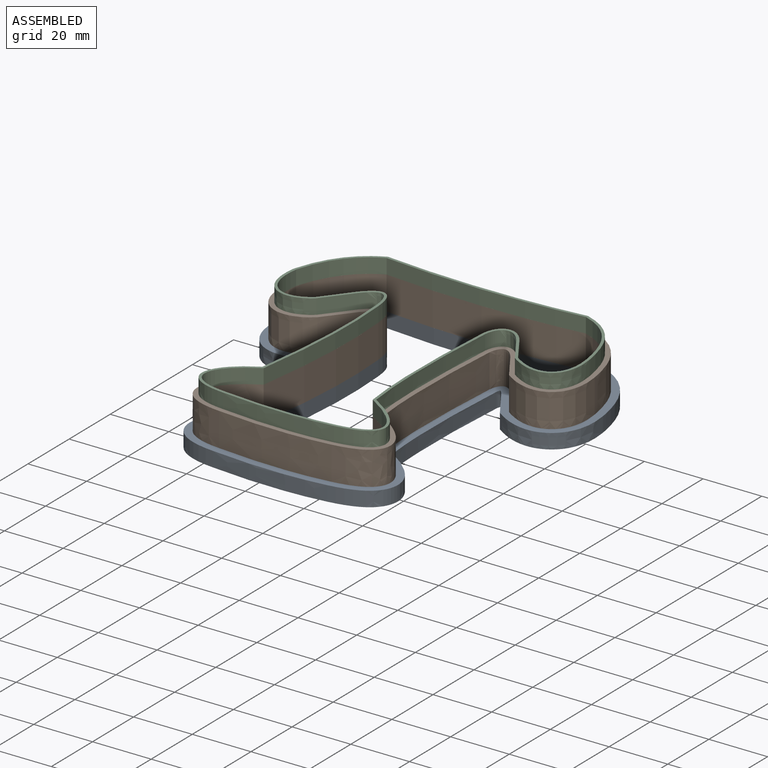
[diagram: assembled view]
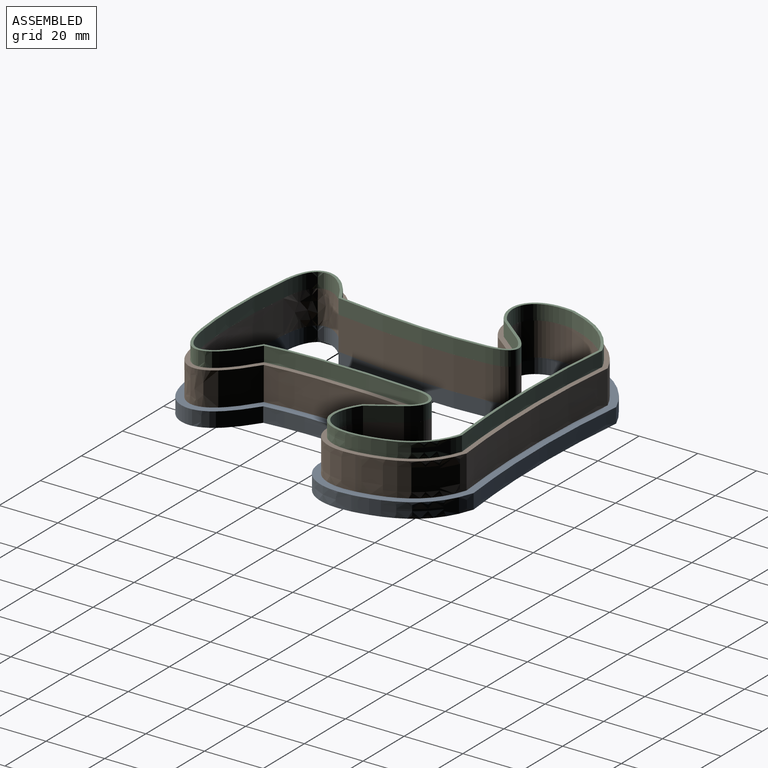
[diagram: assembled view, second angle]
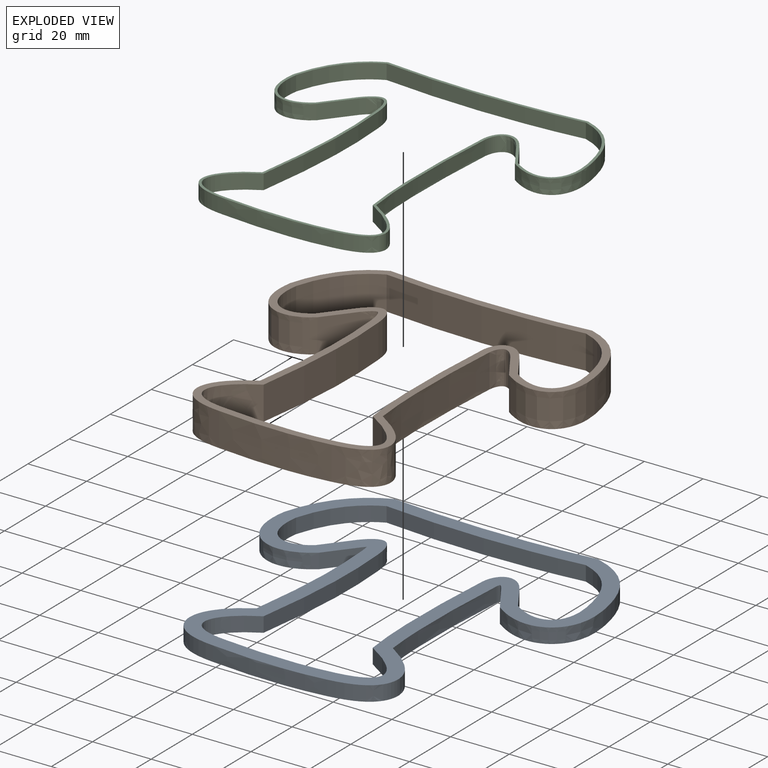
[diagram: exploded view]
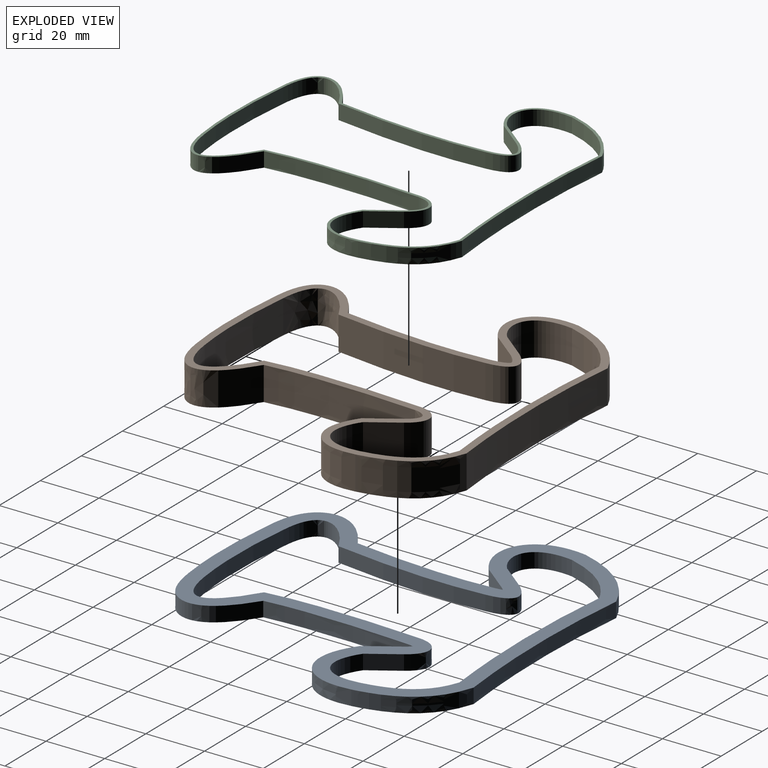
[diagram: exploded view, second angle]
ASSEMBLY  parts=3 mates=2
PART A: 32 faces, bbox 116.2x114.7x10.2 mm
  f0: plane 116.24x114.72mm, normal (0,0,1), area 2342.4mm2, adj f2,f3,f4,f5,f6,f7,f8,f9
  f1: plane 116.24x114.72mm, normal (0,0,-1), area 2342.4mm2, adj f2,f3,f4,f5,f6,f7,f8,f9
  f2: extruded ~5.08x0.96mm, area 6.8mm2, adj f0,f1,f16,f17
  f3: extruded ~5.08x1.44mm, area 7.5mm2, adj f0,f1,f8,f9
  f4: extruded ~48.34x5.08mm, area 246.4mm2, adj f0,f1,f5,f17
  f5: extruded ~27.11x16.11mm, area 215.3mm2, adj f0,f1,f4,f6
  f6: extruded ~39.08x5.08mm, area 199mm2, adj f0,f1,f5,f7
  f7: extruded ~27.6x16.08mm, area 219.8mm2, adj f0,f1,f6,f8
  f8: extruded ~49.94x5.08mm, area 254mm2, adj f0,f1,f3,f7
  f9: extruded ~5.08x1.82mm, area 12.1mm2, adj f0,f1,f3,f10
  f10: extruded ~10.37x6.82mm, area 63.1mm2, adj f0,f1,f9,f11
  f11: extruded ~25.18x19.3mm, area 202.7mm2, adj f0,f1,f10,f12
  f12: extruded ~27.23x20.61mm, area 184.7mm2, adj f0,f1,f11,f13
  f13: extruded ~69.32x5.08mm, area 352.8mm2, adj f0,f1,f12,f14
  f14: extruded ~24.77x20.45mm, area 168.7mm2, adj f0,f1,f13,f15
  f15: extruded ~23.88x20.78mm, area 203mm2, adj f0,f1,f14,f16
  f16: plane 9.93x7.85mm, normal (0.78,-0.62,0), area 64.3mm2, adj f0,f1,f2,f15
  f17: extruded ~5.08x2.56mm, area 13.1mm2, adj f0,f1,f2,f4
  f18: extruded ~51.94x5.08mm, area 264.8mm2, adj f0,f1,f19,f31
  f19: extruded ~18.82x11.55mm, area 162.7mm2, adj f0,f1,f18,f20
  f20: extruded ~37.9x5.08mm, area 193mm2, adj f0,f1,f19,f21
  f21: extruded ~19.52x12.71mm, area 168.7mm2, adj f0,f1,f20,f22
  f22: extruded ~53.44x5.08mm, area 271.9mm2, adj f0,f1,f21,f23
  f23: extruded ~11.14x6.36mm, area 84.8mm2, adj f0,f1,f22,f24
  f24: extruded ~9.57x6.26mm, area 58.1mm2, adj f0,f1,f23,f25
  f25: extruded ~16.47x13.48mm, area 138.6mm2, adj f0,f1,f24,f26
  f26: extruded ~22.8x16.15mm, area 150.8mm2, adj f0,f1,f25,f27
  f27: extruded ~67.91x5.08mm, area 345.6mm2, adj f0,f1,f26,f28
  f28: extruded ~20.67x16.33mm, area 138.3mm2, adj f0,f1,f27,f29
  f29: extruded ~15.17x14.61mm, area 136.1mm2, adj f0,f1,f28,f30
  f30: plane 9.6x7.58mm, normal (-0.78,0.62,0), area 62.1mm2, adj f0,f1,f29,f31
  f31: extruded ~10.21x8.32mm, area 88.4mm2, adj f0,f1,f18,f30
PART B: 30 faces, bbox 110.5x108.9x15.8 mm
  f0: plane 110.46x108.89mm, normal (0,0,1), area 1151.3mm2, adj f2,f3,f4,f5,f6,f7,f8,f9
  f1: plane 110.46x108.89mm, normal (0,0,-1), area 1151.3mm2, adj f2,f3,f4,f5,f6,f7,f8,f9
  f2: extruded ~50.12x11.43mm, area 574.8mm2, adj f0,f1,f3,f15
  f3: extruded ~22.99x13.84mm, area 425.5mm2, adj f0,f1,f2,f4
  f4: extruded ~38.49x11.43mm, area 441mm2, adj f0,f1,f3,f5
  f5: extruded ~23.58x13.87mm, area 437.2mm2, adj f0,f1,f4,f6
  f6: extruded ~51.67x11.43mm, area 591.4mm2, adj f0,f1,f5,f7
  f7: extruded ~11.43x6.51mm, area 119.5mm2, adj f0,f1,f6,f8
  f8: extruded ~11.43x9.97mm, area 136.3mm2, adj f0,f1,f7,f9
  f9: extruded ~20.82x16.39mm, area 384.5mm2, adj f0,f1,f8,f10
  f10: extruded ~25.02x18.38mm, area 377.7mm2, adj f0,f1,f9,f11
  f11: extruded ~68.62x11.43mm, area 785.8mm2, adj f0,f1,f10,f12
  f12: extruded ~22.72x18.39mm, area 345.5mm2, adj f0,f1,f11,f13
  f13: extruded ~19.53x17.7mm, area 381.3mm2, adj f0,f1,f12,f14
  f14: plane 11.43x9.76mm, normal (0.78,-0.62,0), area 142.2mm2, adj f0,f1,f13,f15
  f15: extruded ~11.43x5.96mm, area 129.9mm2, adj f0,f1,f2,f14
  f16: extruded ~51.94x11.43mm, area 595.8mm2, adj f0,f1,f17,f29
  f17: extruded ~18.82x11.55mm, area 366.1mm2, adj f0,f1,f16,f18
  f18: extruded ~37.9x11.43mm, area 434.3mm2, adj f0,f1,f17,f19
  f19: extruded ~19.52x12.71mm, area 379.6mm2, adj f0,f1,f18,f20
  f20: extruded ~53.44x11.43mm, area 611.8mm2, adj f0,f1,f19,f21
  f21: extruded ~11.43x11.14mm, area 190.8mm2, adj f0,f1,f20,f22
  f22: extruded ~11.43x9.57mm, area 130.7mm2, adj f0,f1,f21,f23
  f23: extruded ~16.47x13.48mm, area 311.9mm2, adj f0,f1,f22,f24
  f24: extruded ~22.8x16.15mm, area 339.2mm2, adj f0,f1,f23,f25
  f25: extruded ~67.91x11.43mm, area 777.7mm2, adj f0,f1,f24,f26
  f26: extruded ~20.67x16.33mm, area 311.1mm2, adj f0,f1,f25,f27
  f27: extruded ~15.17x14.61mm, area 306.2mm2, adj f0,f1,f26,f28
  f28: plane 11.43x9.6mm, normal (-0.78,0.62,0), area 139.8mm2, adj f0,f1,f27,f29
  f29: extruded ~11.43x10.21mm, area 198.9mm2, adj f0,f1,f16,f28
PART C: 30 faces, bbox 108.9x106x9.9 mm
  f0: plane 108.86x106.01mm, normal (0,0,1), area 398.9mm2, adj f2,f3,f4,f5,f6,f7,f8,f9
  f1: plane 108.86x106.01mm, normal (0,0,-1), area 398.9mm2, adj f2,f3,f4,f5,f6,f7,f8,f9
  f2: extruded ~51.29x5.08mm, area 261.5mm2, adj f0,f1,f3,f15
  f3: extruded ~20.29x12.35mm, area 172mm2, adj f0,f1,f2,f4
  f4: extruded ~38.1x5.08mm, area 194mm2, adj f0,f1,f3,f5
  f5: extruded ~20.95x12.76mm, area 177.7mm2, adj f0,f1,f4,f6
  f6: extruded ~52.82x5.08mm, area 268.7mm2, adj f0,f1,f5,f7
  f7: extruded ~9.52x5.55mm, area 73.7mm2, adj f0,f1,f6,f8
  f8: extruded ~9.71x6.36mm, area 59mm2, adj f0,f1,f7,f9
  f9: extruded ~17.99x14.5mm, area 149.9mm2, adj f0,f1,f8,f10
  f10: extruded ~23.58x16.93mm, area 156.7mm2, adj f0,f1,f9,f11
  f11: extruded ~68.16x5.08mm, area 346.9mm2, adj f0,f1,f10,f12
  f12: extruded ~21.39x17.05mm, area 143.7mm2, adj f0,f1,f11,f13
  f13: extruded ~16.69x15.69mm, area 147.8mm2, adj f0,f1,f12,f14
  f14: plane 9.65x7.63mm, normal (0.78,-0.62,0), area 62.5mm2, adj f0,f1,f13,f15
  f15: extruded ~8.64x7.49mm, area 77.7mm2, adj f0,f1,f2,f14
  f16: extruded ~51.94x5.08mm, area 264.8mm2, adj f0,f1,f17,f29
  f17: extruded ~18.82x11.55mm, area 162.7mm2, adj f0,f1,f16,f18
  f18: extruded ~37.9x5.08mm, area 193mm2, adj f0,f1,f17,f19
  f19: extruded ~19.52x12.71mm, area 168.7mm2, adj f0,f1,f18,f20
  f20: extruded ~53.44x5.08mm, area 271.9mm2, adj f0,f1,f19,f21
  f21: extruded ~11.14x6.36mm, area 84.8mm2, adj f0,f1,f20,f22
  f22: extruded ~9.57x6.26mm, area 58.1mm2, adj f0,f1,f21,f23
  f23: extruded ~16.47x13.48mm, area 138.6mm2, adj f0,f1,f22,f24
  f24: extruded ~22.8x16.15mm, area 150.8mm2, adj f0,f1,f23,f25
  f25: extruded ~67.91x5.08mm, area 345.6mm2, adj f0,f1,f24,f26
  f26: extruded ~20.67x16.33mm, area 138.3mm2, adj f0,f1,f25,f27
  f27: extruded ~15.17x14.61mm, area 136.1mm2, adj f0,f1,f26,f28
  f28: plane 9.6x7.58mm, normal (-0.78,0.62,0), area 62.1mm2, adj f0,f1,f27,f29
  f29: extruded ~10.21x8.32mm, area 88.4mm2, adj f0,f1,f16,f28
PLACE A t=(-10.85,16.94,-4)mm
PLACE B t=(204.99,15.84,1.08)mm
PLACE C t=(92.79,11.37,12.51)mm
MATE fastened C.f1 <-> B.f0  axis (0,0,-1) through (97.64,-17.37,12.51)mm
MATE fastened B.f1 <-> A.f0  axis (0,0,1) through (97.64,-17.37,1.08)mm
